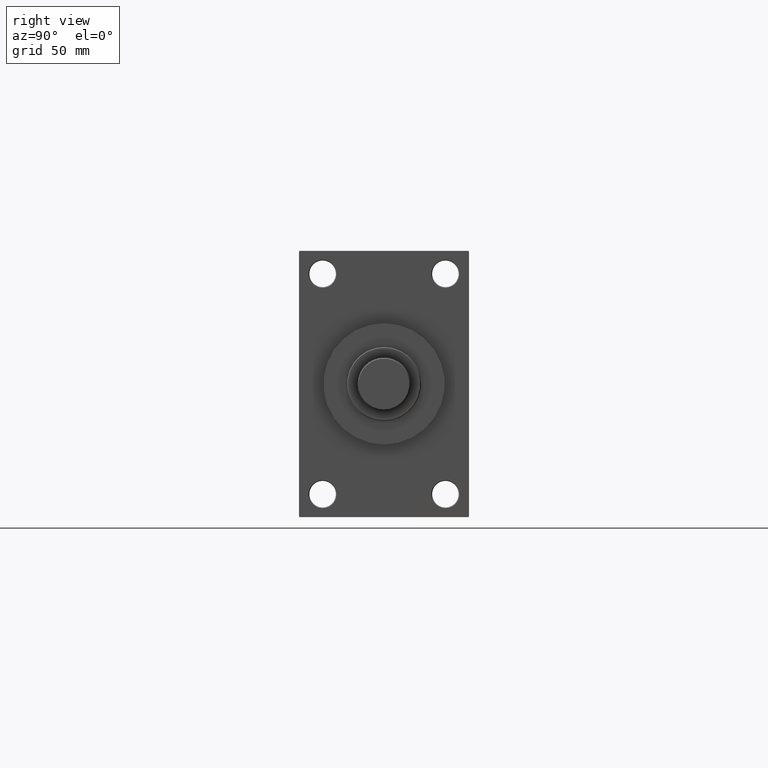
[diagram: clean part render]
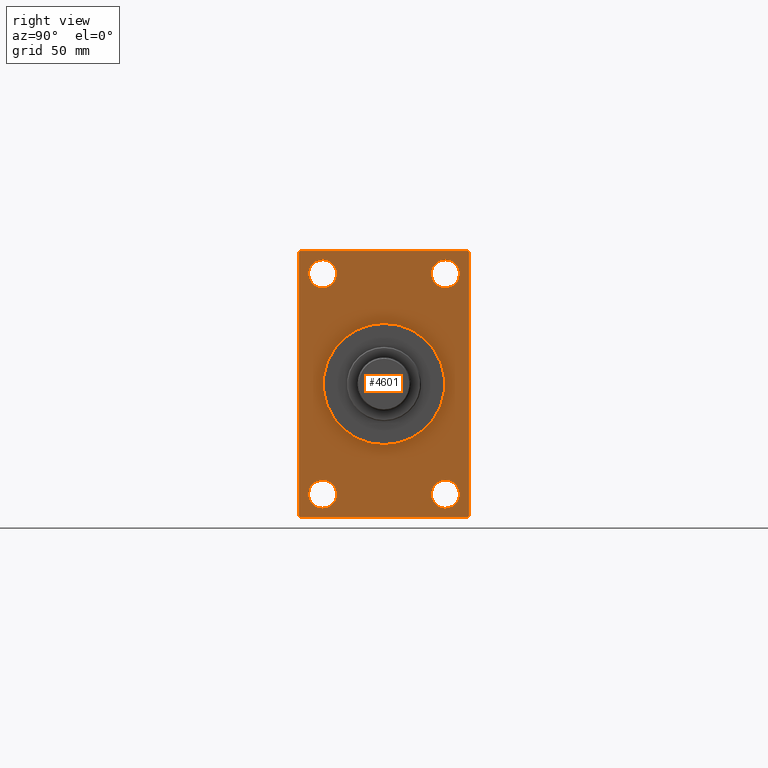
[diagram: same view with one face highlighted and labeled with its STEP entity id]
A machine part, right view. The second image highlights one B-rep face of the part: STEP entity #4601.
In plain terms, the highlighted planar face has unit normal (-1, 0, 0).
Its self-contained STEP definition (entity closure, byte-faithful):
#72 = EDGE_CURVE ( 'NONE', #38213, #7123, #14781, .T. ) ;
#323 = LINE ( 'NONE', #15862, #30529 ) ;
#551 = CARTESIAN_POINT ( 'NONE',  ( 338.9999999999999432, -41.49999999999999289, 74.50000000000001421 ) ) ;
#1404 = VERTEX_POINT ( 'NONE', #11219 ) ;
#1478 = CARTESIAN_POINT ( 'NONE',  ( 338.9999999999999432, 5.021051876504148963E-15, -41.00000000000000000 ) ) ;
#1552 = EDGE_LOOP ( 'NONE', ( #14788, #10263 ) ) ;
#1842 = AXIS2_PLACEMENT_3D ( 'NONE', #3926, #26340, #30443 ) ;
#2642 = DIRECTION ( 'NONE',  ( 0.000000000000000000, -1.000000000000000000, -1.206764157201257045E-16 ) ) ;
#2696 = VERTEX_POINT ( 'NONE', #16263 ) ;
#2773 = AXIS2_PLACEMENT_3D ( 'NONE', #551, #15133, #29989 ) ;
#2904 = ORIENTED_EDGE ( 'NONE', *, *, #4004, .F. ) ;
#3122 = ORIENTED_EDGE ( 'NONE', *, *, #72, .F. ) ;
#3268 = CIRCLE ( 'NONE', #11803, 41.00000000000000000 ) ;
#3294 = ORIENTED_EDGE ( 'NONE', *, *, #41877, .T. ) ;
#3361 = ORIENTED_EDGE ( 'NONE', *, *, #35985, .F. ) ;
#3608 = AXIS2_PLACEMENT_3D ( 'NONE', #18694, #19167, #18929 ) ;
#3902 = EDGE_CURVE ( 'NONE', #47309, #44846, #32055, .T. ) ;
#3926 = CARTESIAN_POINT ( 'NONE',  ( 338.9999999999999432, 0.000000000000000000, 0.000000000000000000 ) ) ;
#4004 = EDGE_CURVE ( 'NONE', #37416, #15443, #3268, .T. ) ;
#4180 = EDGE_CURVE ( 'NONE', #28342, #39122, #28904, .T. ) ;
#4601 = ADVANCED_FACE ( 'NONE', ( #15112, #30683, #41644, #41406, #37518, #33856 ), #15352, .F. ) ;
#5147 = LINE ( 'NONE', #27316, #24850 ) ;
#5423 = DIRECTION ( 'NONE',  ( 0.000000000000000000, -0.7071067811865867636, 0.7071067811865081598 ) ) ;
#6049 = ORIENTED_EDGE ( 'NONE', *, *, #14041, .T. ) ;
#6552 = DIRECTION ( 'NONE',  ( -1.000000000000000000, 0.000000000000000000, -0.000000000000000000 ) ) ;
#6802 = CARTESIAN_POINT ( 'NONE',  ( 338.9999999999999432, -41.49999999999999289, -74.49999999999998579 ) ) ;
#6982 = CARTESIAN_POINT ( 'NONE',  ( 338.9999999999999432, 41.50000000000000711, 84.00000000000007105 ) ) ;
#7123 = VERTEX_POINT ( 'NONE', #28830 ) ;
#7245 = EDGE_LOOP ( 'NONE', ( #3294, #42778 ) ) ;
#7781 = VERTEX_POINT ( 'NONE', #39852 ) ;
#7925 = AXIS2_PLACEMENT_3D ( 'NONE', #40505, #29541, #11030 ) ;
#8061 = CARTESIAN_POINT ( 'NONE',  ( 338.9999999999999432, -41.49999999999999289, -83.99999999999988631 ) ) ;
#8397 = ORIENTED_EDGE ( 'NONE', *, *, #8632, .T. ) ;
#8632 = EDGE_CURVE ( 'NONE', #38515, #21180, #46041, .T. ) ;
#8687 = EDGE_CURVE ( 'NONE', #24267, #47899, #11658, .T. ) ;
#9744 = DIRECTION ( 'NONE',  ( -1.000000000000000000, 0.000000000000000000, -0.000000000000000000 ) ) ;
#9909 = CARTESIAN_POINT ( 'NONE',  ( 338.9999999999999432, 41.50000000000000711, -64.99999999999992895 ) ) ;
#10263 = ORIENTED_EDGE ( 'NONE', *, *, #43202, .T. ) ;
#11030 = DIRECTION ( 'NONE',  ( 0.000000000000000000, 0.000000000000000000, 1.000000000000000000 ) ) ;
#11199 = CARTESIAN_POINT ( 'NONE',  ( 338.9999999999999432, -41.49999999999999289, -65.00000000000008527 ) ) ;
#11208 = EDGE_CURVE ( 'NONE', #39122, #28342, #11721, .T. ) ;
#11219 = CARTESIAN_POINT ( 'NONE',  ( 338.9999999999999432, 56.99999999999992184, 89.99999999999998579 ) ) ;
#11243 = CARTESIAN_POINT ( 'NONE',  ( 338.9999999999999432, -57.00000000000002132, -90.00000000000001421 ) ) ;
#11658 = CIRCLE ( 'NONE', #45098, 9.499999999999896971 ) ;
#11721 = CIRCLE ( 'NONE', #38953, 9.500000000000063949 ) ;
#11803 = AXIS2_PLACEMENT_3D ( 'NONE', #26927, #27643, #20104 ) ;
#12099 = DIRECTION ( 'NONE',  ( 0.000000000000000000, 0.000000000000000000, 1.000000000000000000 ) ) ;
#12341 = VERTEX_POINT ( 'NONE', #6982 ) ;
#12434 = DIRECTION ( 'NONE',  ( 0.000000000000000000, 0.000000000000000000, -1.000000000000000000 ) ) ;
#14041 = EDGE_CURVE ( 'NONE', #1404, #17362, #323, .T. ) ;
#14781 = LINE ( 'NONE', #40597, #26578 ) ;
#14788 = ORIENTED_EDGE ( 'NONE', *, *, #8687, .T. ) ;
#15112 = FACE_BOUND ( 'NONE', #7245, .T. ) ;
#15133 = DIRECTION ( 'NONE',  ( -1.000000000000000000, 0.000000000000000000, -0.000000000000000000 ) ) ;
#15352 = PLANE ( 'NONE',  #1842 ) ;
#15443 = VERTEX_POINT ( 'NONE', #40796 ) ;
#15862 = CARTESIAN_POINT ( 'NONE',  ( 338.9999999999999432, 57.49999999999997158, 89.99999999999998579 ) ) ;
#16263 = CARTESIAN_POINT ( 'NONE',  ( 338.9999999999999432, -41.49999999999999289, 84.00000000000007105 ) ) ;
#16603 = EDGE_LOOP ( 'NONE', ( #19302, #40064 ) ) ;
#17122 = VECTOR ( 'NONE', #12434, 1000.000000000000000 ) ;
#17288 = DIRECTION ( 'NONE',  ( 0.000000000000000000, 0.000000000000000000, 1.000000000000000000 ) ) ;
#17362 = VERTEX_POINT ( 'NONE', #37430 ) ;
#18332 = ORIENTED_EDGE ( 'NONE', *, *, #35489, .T. ) ;
#18417 = CIRCLE ( 'NONE', #46422, 9.500000000000063949 ) ;
#18694 = CARTESIAN_POINT ( 'NONE',  ( 338.9999999999999432, 0.000000000000000000, 0.000000000000000000 ) ) ;
#18929 = DIRECTION ( 'NONE',  ( 0.000000000000000000, 0.000000000000000000, -1.000000000000000000 ) ) ;
#19167 = DIRECTION ( 'NONE',  ( 1.000000000000000000, 0.000000000000000000, 0.000000000000000000 ) ) ;
#19302 = ORIENTED_EDGE ( 'NONE', *, *, #11208, .T. ) ;
#19872 = CARTESIAN_POINT ( 'NONE',  ( 338.9999999999999432, -41.49999999999999289, 64.99999999999994316 ) ) ;
#20026 = AXIS2_PLACEMENT_3D ( 'NONE', #25011, #43502, #39853 ) ;
#20042 = CARTESIAN_POINT ( 'NONE',  ( 338.9999999999999432, 56.99999999999992184, 89.99999999999998579 ) ) ;
#20068 = CIRCLE ( 'NONE', #40270, 9.500000000000063949 ) ;
#20104 = DIRECTION ( 'NONE',  ( 0.000000000000000000, 0.000000000000000000, -1.000000000000000000 ) ) ;
#20855 = AXIS2_PLACEMENT_3D ( 'NONE', #23083, #29468, #12099 ) ;
#20973 = DIRECTION ( 'NONE',  ( -1.000000000000000000, 0.000000000000000000, -0.000000000000000000 ) ) ;
#21180 = VERTEX_POINT ( 'NONE', #36912 ) ;
#21715 = CARTESIAN_POINT ( 'NONE',  ( 338.9999999999999432, 41.50000000000000711, -84.00000000000005684 ) ) ;
#22949 = DIRECTION ( 'NONE',  ( 0.000000000000000000, -1.000000000000000000, -1.206764157201257291E-16 ) ) ;
#23083 = CARTESIAN_POINT ( 'NONE',  ( 338.9999999999999432, -41.49999999999999289, -74.49999999999998579 ) ) ;
#23255 = EDGE_CURVE ( 'NONE', #47309, #1404, #41702, .T. ) ;
#23664 = DIRECTION ( 'NONE',  ( -0.000000000000000000, 0.7071067811865181518, 0.7071067811865769936 ) ) ;
#23950 = DIRECTION ( 'NONE',  ( 0.000000000000000000, 0.000000000000000000, 1.000000000000000000 ) ) ;
#24267 = VERTEX_POINT ( 'NONE', #8061 ) ;
#24389 = EDGE_LOOP ( 'NONE', ( #3361, #2904 ) ) ;
#24850 = VECTOR ( 'NONE', #23664, 1000.000000000000000 ) ;
#25011 = CARTESIAN_POINT ( 'NONE',  ( 338.9999999999999432, -41.49999999999999289, 74.50000000000001421 ) ) ;
#25023 = VECTOR ( 'NONE', #46910, 1000.000000000000000 ) ;
#25640 = VECTOR ( 'NONE', #30368, 1000.000000000000000 ) ;
#25935 = ORIENTED_EDGE ( 'NONE', *, *, #23255, .T. ) ;
#26119 = DIRECTION ( 'NONE',  ( 0.000000000000000000, 0.7071067811865965336, -0.7071067811864985009 ) ) ;
#26340 = DIRECTION ( 'NONE',  ( -1.000000000000000000, 0.000000000000000000, -0.000000000000000000 ) ) ;
#26343 = CARTESIAN_POINT ( 'NONE',  ( 338.9999999999999432, 57.00000000000003553, -90.00000000000000000 ) ) ;
#26540 = ORIENTED_EDGE ( 'NONE', *, *, #46039, .T. ) ;
#26578 = VECTOR ( 'NONE', #2642, 1000.000000000000000 ) ;
#26927 = CARTESIAN_POINT ( 'NONE',  ( 338.9999999999999432, 0.000000000000000000, 0.000000000000000000 ) ) ;
#26976 = EDGE_LOOP ( 'NONE', ( #46132, #39868 ) ) ;
#27316 = CARTESIAN_POINT ( 'NONE',  ( 338.9999999999999432, 57.49999999999997868, -89.50000000000001421 ) ) ;
#27643 = DIRECTION ( 'NONE',  ( 1.000000000000000000, 0.000000000000000000, 0.000000000000000000 ) ) ;
#28211 = CARTESIAN_POINT ( 'NONE',  ( 338.9999999999999432, 57.49999999999997158, 89.49999999999998579 ) ) ;
#28342 = VERTEX_POINT ( 'NONE', #9909 ) ;
#28566 = CIRCLE ( 'NONE', #20026, 9.500000000000063949 ) ;
#28830 = CARTESIAN_POINT ( 'NONE',  ( 338.9999999999999432, -57.00000000000002132, -90.00000000000001421 ) ) ;
#28904 = CIRCLE ( 'NONE', #7925, 9.500000000000063949 ) ;
#29210 = VECTOR ( 'NONE', #26119, 1000.000000000000114 ) ;
#29468 = DIRECTION ( 'NONE',  ( -1.000000000000000000, 0.000000000000000000, -0.000000000000000000 ) ) ;
#29541 = DIRECTION ( 'NONE',  ( -1.000000000000000000, 0.000000000000000000, -0.000000000000000000 ) ) ;
#29989 = DIRECTION ( 'NONE',  ( 0.000000000000000000, 0.000000000000000000, 1.000000000000000000 ) ) ;
#30368 = DIRECTION ( 'NONE',  ( -0.000000000000000000, -0.7071067811865131558, -0.7071067811865818786 ) ) ;
#30443 = DIRECTION ( 'NONE',  ( -0.000000000000000000, 0.000000000000000000, 1.000000000000000000 ) ) ;
#30510 = CARTESIAN_POINT ( 'NONE',  ( 338.9999999999999432, 41.50000000000000711, 74.50000000000001421 ) ) ;
#30529 = VECTOR ( 'NONE', #22949, 1000.000000000000000 ) ;
#30683 = FACE_BOUND ( 'NONE', #1552, .T. ) ;
#32055 = LINE ( 'NONE', #32527, #25023 ) ;
#32364 = CARTESIAN_POINT ( 'NONE',  ( 338.9999999999999432, 41.50000000000000711, -74.50000000000000000 ) ) ;
#32527 = CARTESIAN_POINT ( 'NONE',  ( 338.9999999999999432, 57.49999999999997158, 89.99999999999998579 ) ) ;
#33396 = LINE ( 'NONE', #11243, #29210 ) ;
#33674 = CARTESIAN_POINT ( 'NONE',  ( 338.9999999999999432, 57.49999999999997868, -89.49999999999995737 ) ) ;
#33856 = FACE_OUTER_BOUND ( 'NONE', #40766, .T. ) ;
#34252 = DIRECTION ( 'NONE',  ( 0.000000000000000000, 0.000000000000000000, 1.000000000000000000 ) ) ;
#35391 = EDGE_CURVE ( 'NONE', #2696, #41190, #36975, .T. ) ;
#35489 = EDGE_CURVE ( 'NONE', #21180, #7123, #33396, .T. ) ;
#35985 = EDGE_CURVE ( 'NONE', #15443, #37416, #40125, .T. ) ;
#36912 = CARTESIAN_POINT ( 'NONE',  ( 338.9999999999999432, -57.50000000000002132, -89.50000000000002842 ) ) ;
#36975 = CIRCLE ( 'NONE', #2773, 9.500000000000063949 ) ;
#37229 = CARTESIAN_POINT ( 'NONE',  ( 338.9999999999999432, -57.50000000000002132, 89.49999999999997158 ) ) ;
#37347 = DIRECTION ( 'NONE',  ( -1.000000000000000000, 0.000000000000000000, -0.000000000000000000 ) ) ;
#37416 = VERTEX_POINT ( 'NONE', #1478 ) ;
#37430 = CARTESIAN_POINT ( 'NONE',  ( 338.9999999999999432, -57.00000000000007105, 89.99999999999997158 ) ) ;
#37518 = FACE_BOUND ( 'NONE', #24389, .T. ) ;
#37680 = LINE ( 'NONE', #41811, #25640 ) ;
#37733 = ORIENTED_EDGE ( 'NONE', *, *, #48140, .T. ) ;
#38213 = VERTEX_POINT ( 'NONE', #26343 ) ;
#38515 = VERTEX_POINT ( 'NONE', #37229 ) ;
#38953 = AXIS2_PLACEMENT_3D ( 'NONE', #32364, #6552, #42860 ) ;
#39051 = ORIENTED_EDGE ( 'NONE', *, *, #3902, .F. ) ;
#39122 = VERTEX_POINT ( 'NONE', #21715 ) ;
#39477 = CARTESIAN_POINT ( 'NONE',  ( 338.9999999999999432, 41.50000000000000711, 74.50000000000001421 ) ) ;
#39852 = CARTESIAN_POINT ( 'NONE',  ( 338.9999999999999432, 41.50000000000000711, 64.99999999999994316 ) ) ;
#39853 = DIRECTION ( 'NONE',  ( 0.000000000000000000, 0.000000000000000000, 1.000000000000000000 ) ) ;
#39868 = ORIENTED_EDGE ( 'NONE', *, *, #41481, .T. ) ;
#40064 = ORIENTED_EDGE ( 'NONE', *, *, #4180, .T. ) ;
#40125 = CIRCLE ( 'NONE', #3608, 41.00000000000000000 ) ;
#40270 = AXIS2_PLACEMENT_3D ( 'NONE', #39477, #20973, #34252 ) ;
#40505 = CARTESIAN_POINT ( 'NONE',  ( 338.9999999999999432, 41.50000000000000711, -74.50000000000000000 ) ) ;
#40597 = CARTESIAN_POINT ( 'NONE',  ( 338.9999999999999432, 57.49999999999997868, -90.00000000000000000 ) ) ;
#40766 = EDGE_LOOP ( 'NONE', ( #8397, #18332, #3122, #26540, #39051, #25935, #6049, #37733 ) ) ;
#40796 = CARTESIAN_POINT ( 'NONE',  ( 338.9999999999999432, 0.000000000000000000, 41.00000000000000000 ) ) ;
#41190 = VERTEX_POINT ( 'NONE', #19872 ) ;
#41406 = FACE_BOUND ( 'NONE', #26976, .T. ) ;
#41481 = EDGE_CURVE ( 'NONE', #12341, #7781, #18417, .T. ) ;
#41644 = FACE_BOUND ( 'NONE', #16603, .T. ) ;
#41702 = LINE ( 'NONE', #20042, #44668 ) ;
#41811 = CARTESIAN_POINT ( 'NONE',  ( 338.9999999999999432, -57.50000000000002132, 89.49999999999997158 ) ) ;
#41877 = EDGE_CURVE ( 'NONE', #41190, #2696, #28566, .T. ) ;
#42150 = CARTESIAN_POINT ( 'NONE',  ( 338.9999999999999432, -57.50000000000002132, 89.99999999999997158 ) ) ;
#42778 = ORIENTED_EDGE ( 'NONE', *, *, #35391, .T. ) ;
#42860 = DIRECTION ( 'NONE',  ( 0.000000000000000000, 0.000000000000000000, 1.000000000000000000 ) ) ;
#43138 = EDGE_CURVE ( 'NONE', #7781, #12341, #20068, .T. ) ;
#43202 = EDGE_CURVE ( 'NONE', #47899, #24267, #44924, .T. ) ;
#43502 = DIRECTION ( 'NONE',  ( -1.000000000000000000, 0.000000000000000000, -0.000000000000000000 ) ) ;
#44668 = VECTOR ( 'NONE', #5423, 1000.000000000000000 ) ;
#44846 = VERTEX_POINT ( 'NONE', #33674 ) ;
#44924 = CIRCLE ( 'NONE', #20855, 9.499999999999896971 ) ;
#45098 = AXIS2_PLACEMENT_3D ( 'NONE', #6802, #9744, #17288 ) ;
#46039 = EDGE_CURVE ( 'NONE', #38213, #44846, #5147, .T. ) ;
#46041 = LINE ( 'NONE', #42150, #17122 ) ;
#46132 = ORIENTED_EDGE ( 'NONE', *, *, #43138, .T. ) ;
#46422 = AXIS2_PLACEMENT_3D ( 'NONE', #30510, #37347, #23950 ) ;
#46910 = DIRECTION ( 'NONE',  ( 0.000000000000000000, 3.854941057726238467E-17, -1.000000000000000000 ) ) ;
#47309 = VERTEX_POINT ( 'NONE', #28211 ) ;
#47899 = VERTEX_POINT ( 'NONE', #11199 ) ;
#48140 = EDGE_CURVE ( 'NONE', #17362, #38515, #37680, .T. ) ;